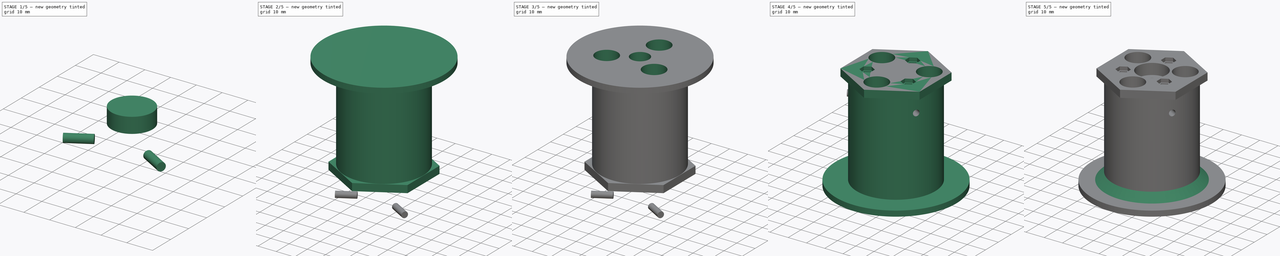
[diagram: build sequence overview — one tinted view per stage of 5, left to right]
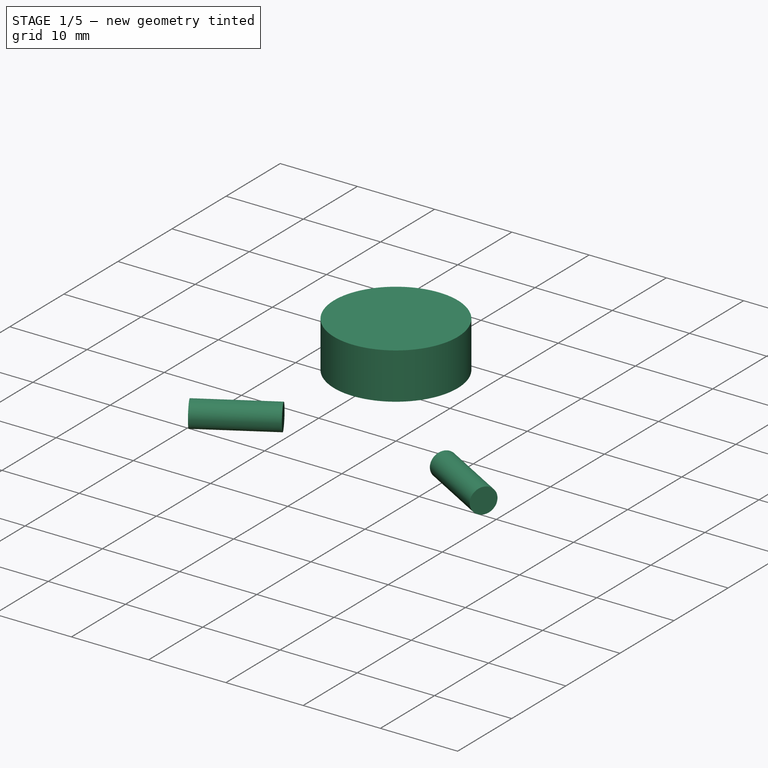
[diagram: stage 1 of 5 — iso view after this stage's code; geometry added in this stage tinted green]
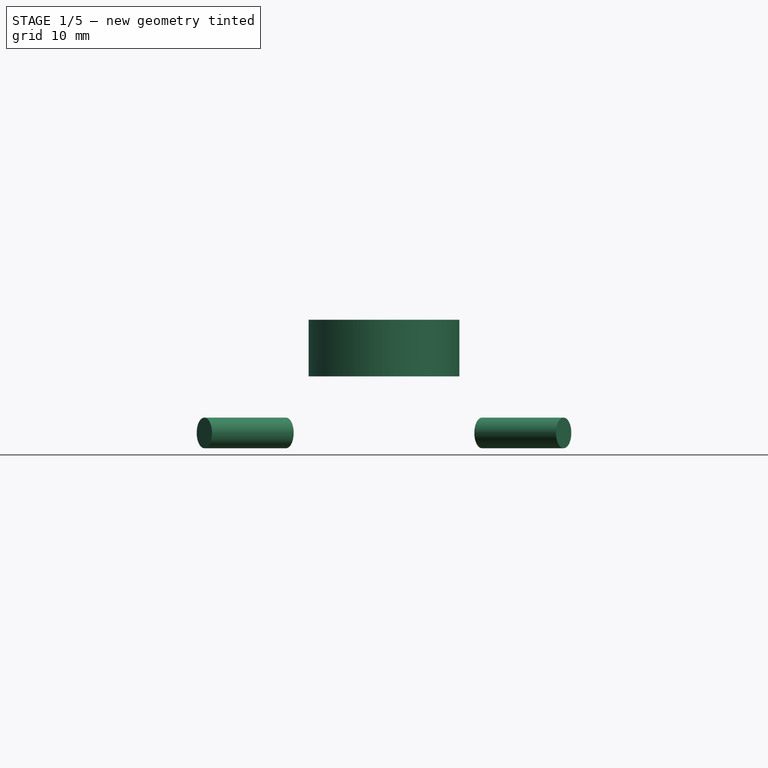
[diagram: stage 1 of 5 — front view after this stage's code; geometry added in this stage tinted green]
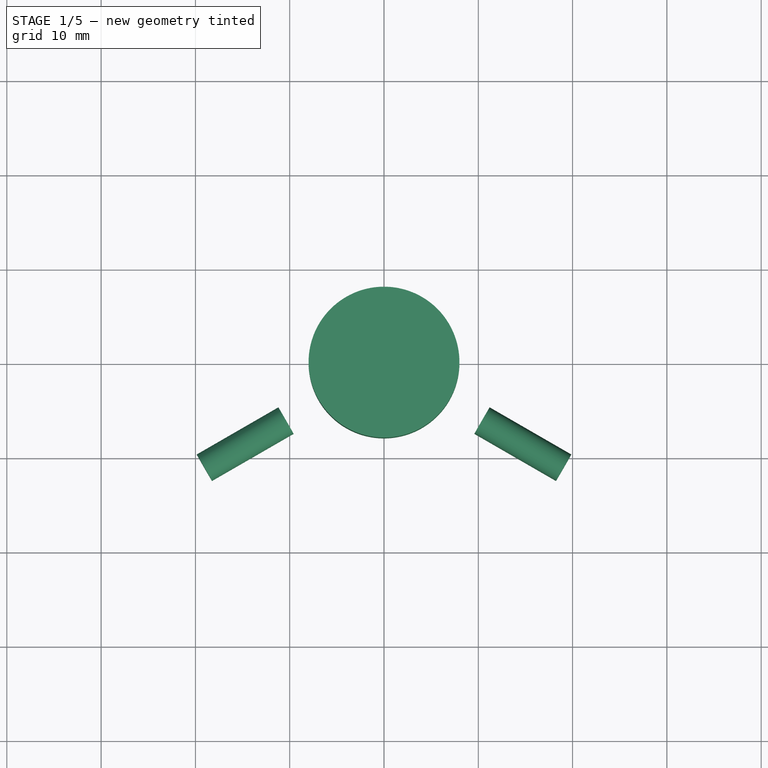
[diagram: stage 1 of 5 — top view after this stage's code; geometry added in this stage tinted green]
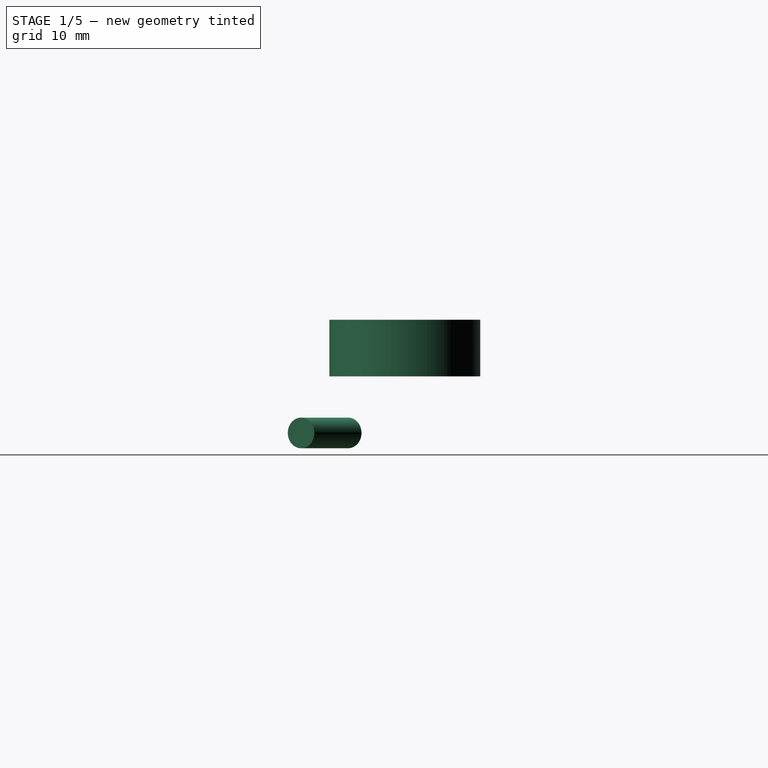
[diagram: stage 1 of 5 — right view after this stage's code; geometry added in this stage tinted green]
FCSTD DOCUMENT  (FreeCAD 0.21R33771 (Git))
Label: reactor-manifold-core-v0.1
License: All rights reserved
LicenseURL: https://en.wikipedia.org/wiki/All_rights_reserved
objects: Sketcher::SketchObject×8, PartDesign::Pocket×5, Part::Cylinder×4, Part::Cut×4, PartDesign::Pad×3, PartDesign::Body×1, Part::Chamfer×1
note: 34 computed .brp shape members not serialized (recipe doc carries the construction recipe); baked Part::Feature solids carry a one-line shape summary decoded from their .brp

FEATURE [Part::Cylinder] Cylinder001
  Angle = 360
  AttacherType = Attacher::AttachEngine3D
  FirstAngle = 0
  Height = 10
  Placement = pos=(10.3923,-6,-12) rot=(0.250563,0.935113,-0.250563;1.63783rad)
  Radius = 1.625
  SecondAngle = 0
FEATURE [Part::Cylinder] Cylinder002
  Angle = 360
  AttacherType = Attacher::AttachEngine3D
  FirstAngle = 0
  Height = 10
  Placement = pos=(-10.3923,-6,-12) rot=(-0.377964,-0.654654,0.654654;2.41886rad)
  Radius = 1.625
  SecondAngle = 0
FEATURE [Part::Cylinder] Cylinder003  label="Bearing cut"
  Angle = 360
  AttacherType = Attacher::AttachEngine3D
  FirstAngle = 0
  Height = 6
  Placement = pos=(0,0,-6) rot=(0,0,1;0rad)
  Radius = 8
  SecondAngle = 0
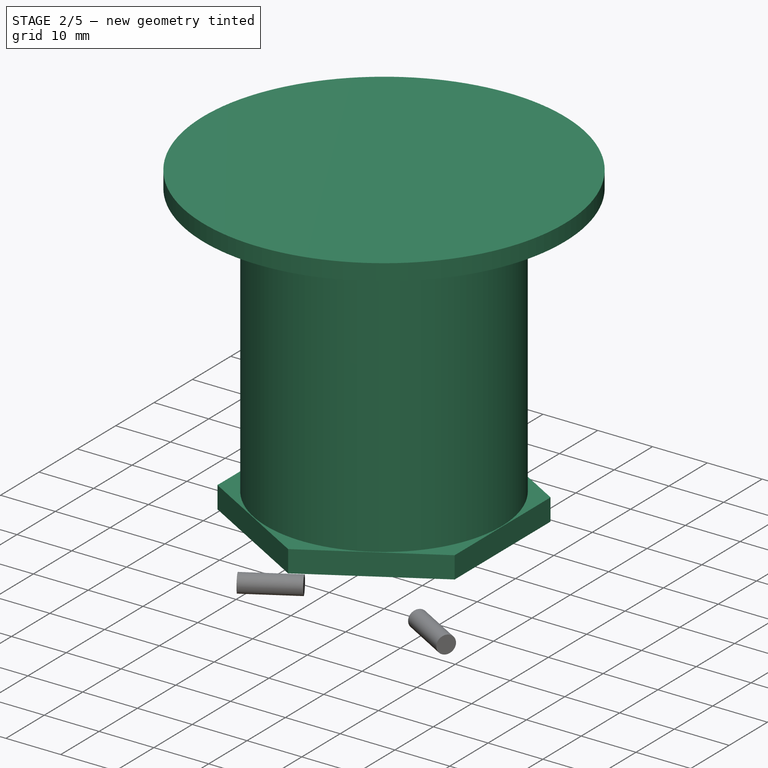
[diagram: stage 2 of 5 — iso view after this stage's code; geometry added in this stage tinted green]
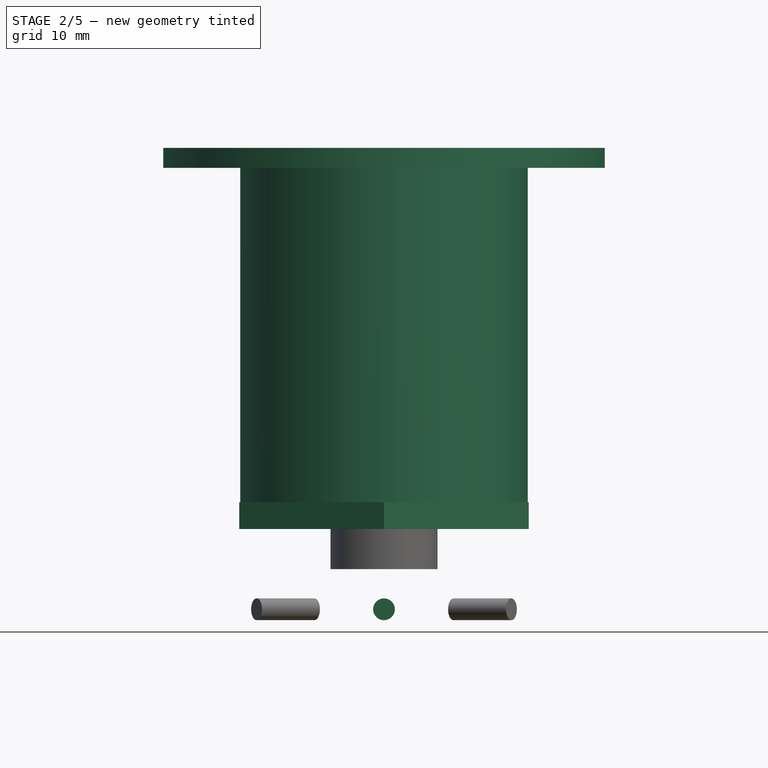
[diagram: stage 2 of 5 — front view after this stage's code; geometry added in this stage tinted green]
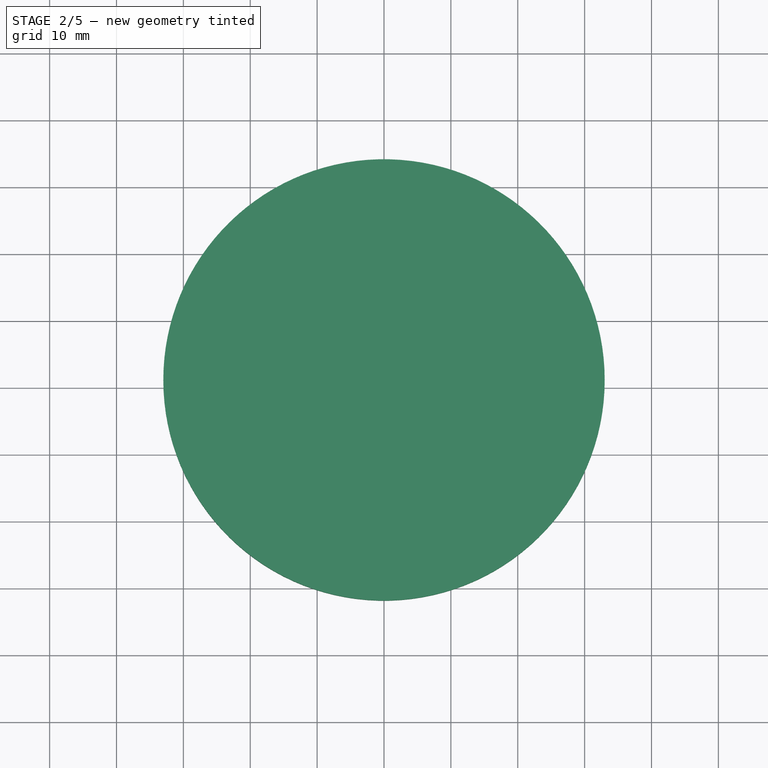
[diagram: stage 2 of 5 — top view after this stage's code; geometry added in this stage tinted green]
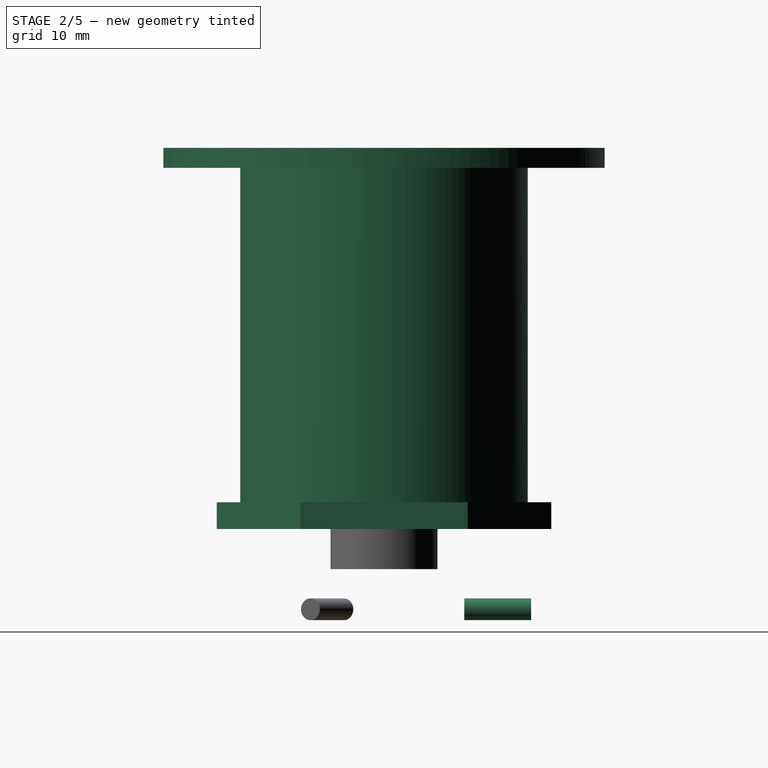
[diagram: stage 2 of 5 — right view after this stage's code; geometry added in this stage tinted green]
FEATURE [Sketcher::SketchObject] Sketch
  FullyConstrained = true
  MapMode = 5
  Support = -> [XY_Plane]
  sketch-geometry (7):
    g0: LineSegment StartX=0 StartY=25 StartZ=0 EndX=-21.6506 EndY=12.5 EndZ=0
    g1: LineSegment StartX=-21.6506 StartY=12.5 StartZ=0 EndX=-21.6506 EndY=-12.5 EndZ=0
    g2: LineSegment StartX=-21.6506 StartY=-12.5 StartZ=0 EndX=3.6e-15 EndY=-25 EndZ=0
    g3: LineSegment StartX=3.6e-15 StartY=-25 StartZ=0 EndX=21.6506 EndY=-12.5 EndZ=0
    g4: LineSegment StartX=21.6506 StartY=-12.5 StartZ=0 EndX=21.6506 EndY=12.5 EndZ=0
    g5: LineSegment StartX=21.6506 StartY=12.5 StartZ=0 EndX=0 EndY=25 EndZ=0
    g6: Circle CenterX=0 CenterY=0 CenterZ=0 NormalX=0 NormalY=0 NormalZ=1 AngleXU=0 Radius=25
  constraints (16):
    c: Coincident(g0,g1)
    c: Coincident(g1,g2)
    c: Coincident(g2,g3)
    c: Coincident(g3,g4)
    c: Coincident(g4,g5)
    c: Coincident(g5,g0)
    c: Equal(g0, g1-g5) x5
    c: PointOnObject(g0,g6)
    c: PointOnObject(g1,g6)
    c: PointOnObject(g2,g6)
    c: PointOnObject(g3,g6)
    c: PointOnObject(g4,g6)
    c: PointOnObject(g5,g6)
    c: Coincident(g6,g-1)
    c: PointOnObject(g5,g-2)
    c: Distance(g0,g2) = 50
FEATURE [PartDesign::Pad] Pad  label="Hexagonal Top"
  Direction = (0,0,1)
  Length = 4
  Length2 = 10
  Profile = -> Sketch
  ReferenceAxis = -> Sketch [N_Axis]
  Type = 0
FEATURE [Sketcher::SketchObject] Sketch001
  FullyConstrained = true
  MapMode = 5
  Placement = pos=(0,0,4) rot=(0,0,1;0rad)
  Support = -> [Pad]
  sketch-geometry (1):
    g0: Circle CenterX=0 CenterY=0 CenterZ=0 NormalX=0 NormalY=0 NormalZ=1 AngleXU=0 Radius=21.5
  constraints (2):
    c: Coincident(g0,g-1)
    c: Diameter(g0) = 43
FEATURE [PartDesign::Pad] Pad001  label="Main Cylinder"
  BaseFeature = -> Pad
  Direction = (0,0,1)
  Length = 50
  Length2 = 10
  Profile = -> Sketch001
  ReferenceAxis = -> Sketch001 [N_Axis]
  Type = 0
FEATURE [Sketcher::SketchObject] Sketch002
  FullyConstrained = true
  MapMode = 5
  Placement = pos=(0,0,54) rot=(0,0,1;0rad)
  Support = -> [Pad001]
  sketch-geometry (1):
    g0: Circle CenterX=0 CenterY=0 CenterZ=0 NormalX=0 NormalY=0 NormalZ=1 AngleXU=0 Radius=33
  constraints (2):
    c: Coincident(g0,g-1)
    c: Diameter(g0) = 66
FEATURE [PartDesign::Pad] Pad002  label="Jar Lid"
  BaseFeature = -> Pad001
  Direction = (0,0,1)
  Length = 3
  Length2 = 10
  Profile = -> Sketch002
  ReferenceAxis = -> Sketch002 [N_Axis]
  Type = 0
FEATURE [PartDesign::Body] Body
  Group = -> [Sketch,Pad,Sketch001,Pad001,Sketch002,Pad002,Sketch003,Pocket,Sketch004,Pocket001,Sketch005,Pocket002,Sketch006,Pocket003,Sketch007,Pocket004]
  Origin = -> Origin
  Placement = pos=(0,0,0) rot=(1,0,0;3.14159rad)
  Tip = -> Pocket004
FEATURE [Part::Cylinder] Cylinder
  Angle = 360
  AttacherType = Attacher::AttachEngine3D
  FirstAngle = 0
  Height = 10
  Placement = pos=(0,22,-12) rot=(1,0,0;1.5708rad)
  Radius = 1.625
  SecondAngle = 0
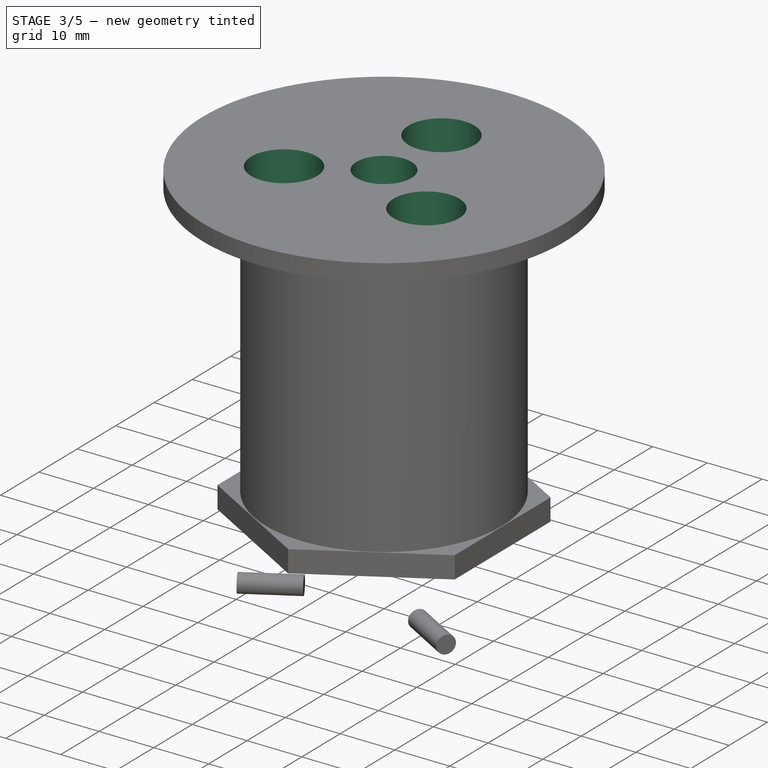
[diagram: stage 3 of 5 — iso view after this stage's code; geometry added in this stage tinted green]
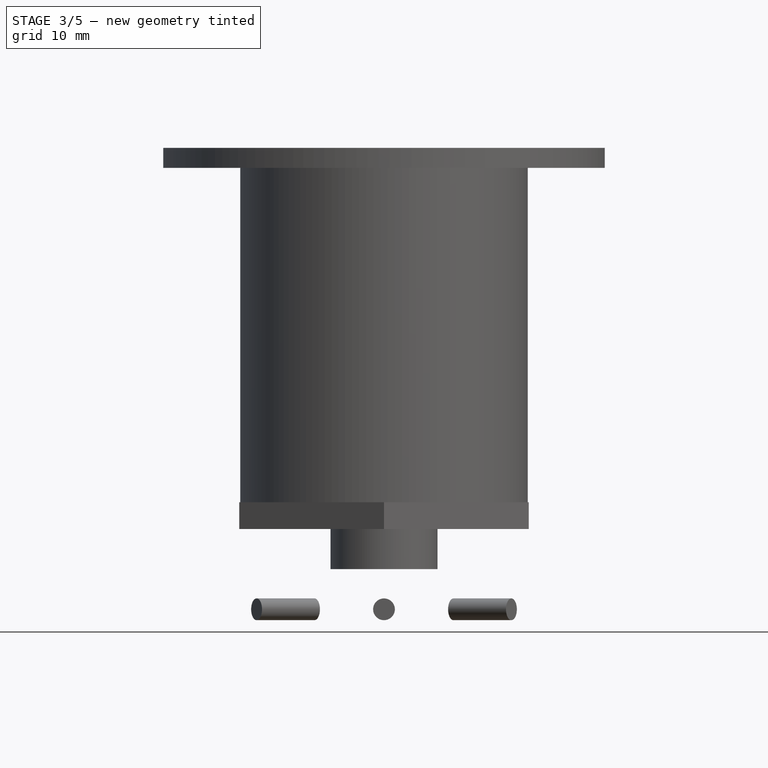
[diagram: stage 3 of 5 — front view after this stage's code; geometry added in this stage tinted green]
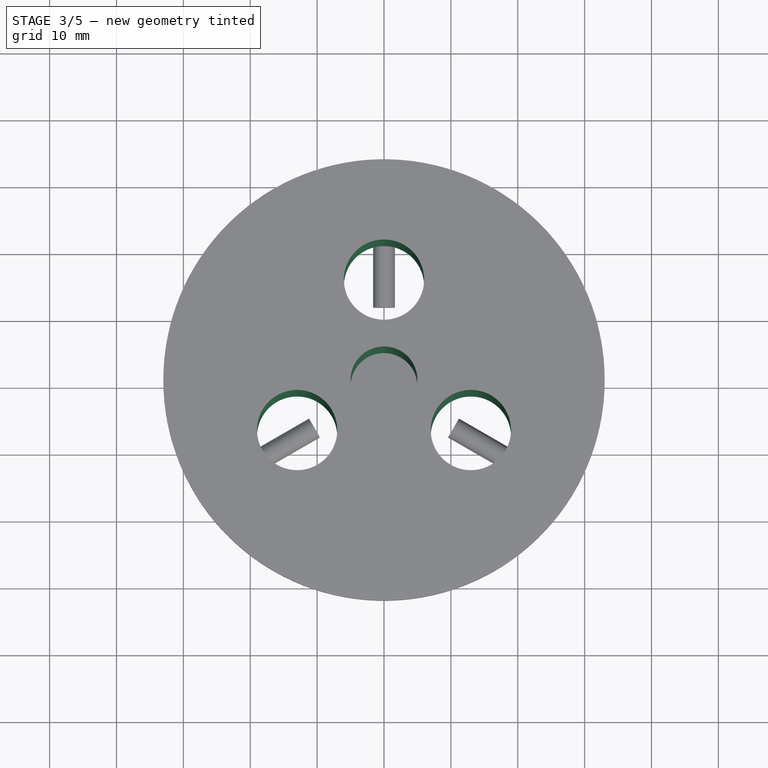
[diagram: stage 3 of 5 — top view after this stage's code; geometry added in this stage tinted green]
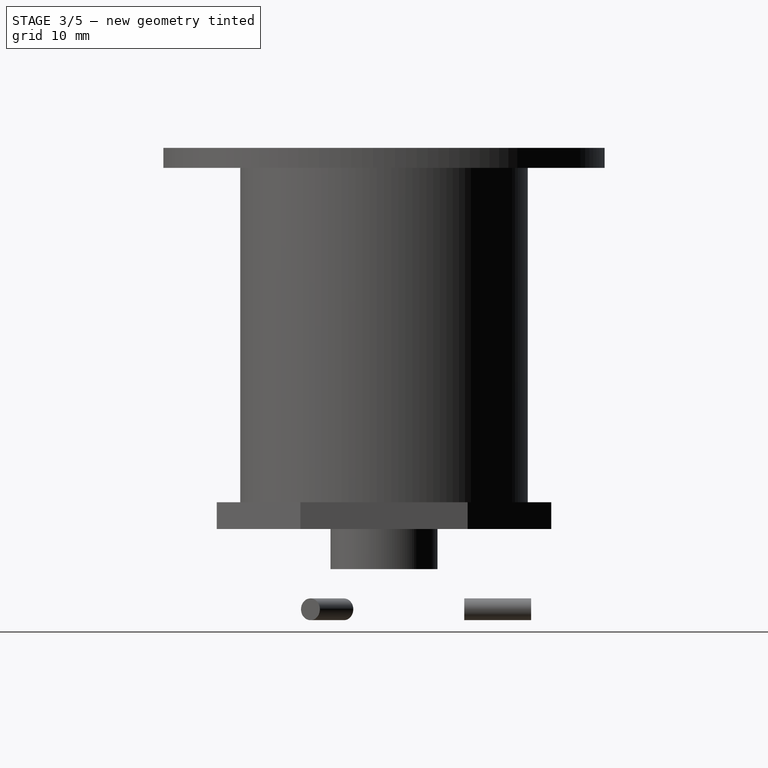
[diagram: stage 3 of 5 — right view after this stage's code; geometry added in this stage tinted green]
FEATURE [Sketcher::SketchObject] Sketch003
  FullyConstrained = true
  MapMode = 5
  Placement = pos=(0,0,57) rot=(0,0,1;0rad)
  Support = -> [Pad002]
  sketch-geometry (1):
    g0: Circle CenterX=0 CenterY=0 CenterZ=0 NormalX=0 NormalY=0 NormalZ=1 AngleXU=0 Radius=5
  constraints (2):
    c: Coincident(g0,g-1)
    c: Diameter(g0) = 10
FEATURE [PartDesign::Pocket] Pocket  label="Stirrer Hole"
  BaseFeature = -> Pad002
  Direction = (0,0,-1)
  Length = 5
  Length2 = 5
  Profile = -> Sketch003
  ReferenceAxis = -> Sketch003 [N_Axis]
  Type = 1
FEATURE [Sketcher::SketchObject] Sketch004
  FullyConstrained = true
  MapMode = 5
  Placement = pos=(0,0,57) rot=(0,0,1;0rad)
  Support = -> [Pocket]
  sketch-geometry (3):
    g0: Circle CenterX=12.9904 CenterY=-7.5 CenterZ=0 NormalX=0 NormalY=0 NormalZ=1 AngleXU=0 Radius=6
    g1: Circle CenterX=-12.9904 CenterY=-7.5 CenterZ=0 NormalX=0 NormalY=0 NormalZ=1 AngleXU=0 Radius=6
    g2: Circle CenterX=0 CenterY=15 CenterZ=0 NormalX=0 NormalY=0 NormalZ=1 AngleXU=0 Radius=6
  constraints (8):
    c: Diameter(g0) = 12
    c: Diameter(g1) = 12  '10'
    c: PointOnObject(g2,g-2)
    c: Diameter(g2) = 12
    c: DistanceY(g-1,g2) = 15
    c: DistanceY(g-1,g0) = -7.5
    c: Distance(g1,g-1) = 15
    c: Symmetric(g1,g0,g-2)
FEATURE [PartDesign::Pocket] Pocket001  label="Reactor Input Holes"
  BaseFeature = -> Pocket
  Direction = (0,0,-1)
  Length = 5
  Length2 = 5
  Profile = -> Sketch004
  ReferenceAxis = -> Sketch004 [N_Axis]
  Type = 1
FEATURE [Sketcher::SketchObject] Sketch005
  FullyConstrained = true
  MapMode = 5
  Placement = pos=(0,0,0) rot=(1,0,0;3.14159rad)
  Support = -> [Pocket001]
  sketch-geometry (3):
    g0: Circle CenterX=0 CenterY=13 CenterZ=0 NormalX=0 NormalY=0 NormalZ=1 AngleXU=0 Radius=1.625
    g1: Circle CenterX=11.265 CenterY=-6.48847 CenterZ=0 NormalX=0 NormalY=0 NormalZ=1 AngleXU=0 Radius=1.625
    g2: Circle CenterX=-11.265 CenterY=-6.48847 CenterZ=0 NormalX=0 NormalY=0 NormalZ=1 AngleXU=0 Radius=1.625
  constraints (9):
    c: PointOnObject(g0,g-2)
    c: Diameter(g0) = 3.25
    c: DistanceY(g0,g-1) = -13
    c: Diameter(g1) = 3.25
    c: Diameter(g2) = 3.25
    c: Distance(g1,g-1) = 13
    c: Distance(g2,g-1) = 13
    c: Distance(g2,g0) = 22.51
    c: DistanceY(g2,g1) = 0
FEATURE [PartDesign::Pocket] Pocket002  label="Top Screw Holes"
  BaseFeature = -> Pocket001
  Direction = (0,0,1)
  Length = 30
  Length2 = 5
  Profile = -> Sketch005
  ReferenceAxis = -> Sketch005 [N_Axis]
  Type = 0
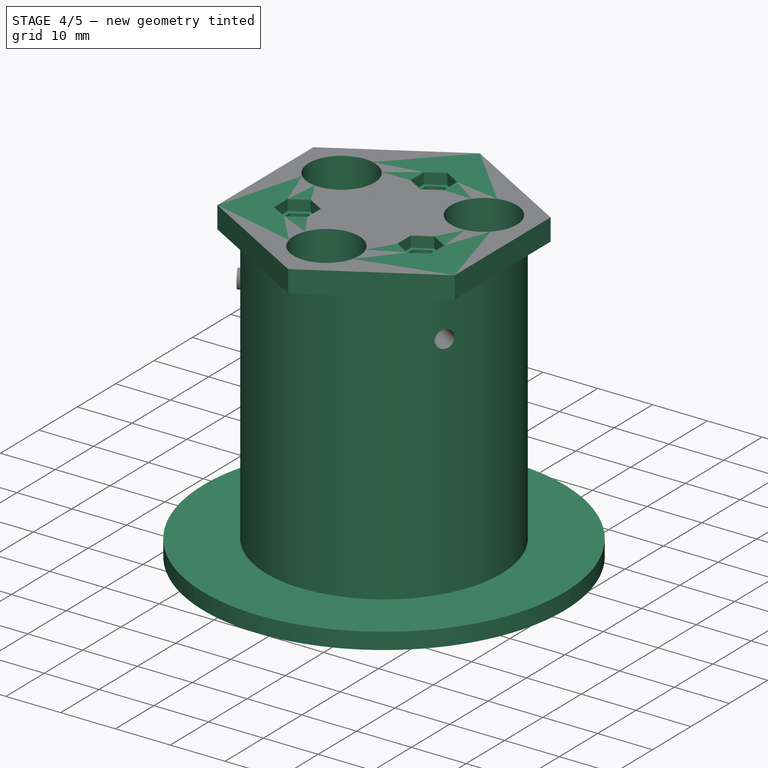
[diagram: stage 4 of 5 — iso view after this stage's code; geometry added in this stage tinted green]
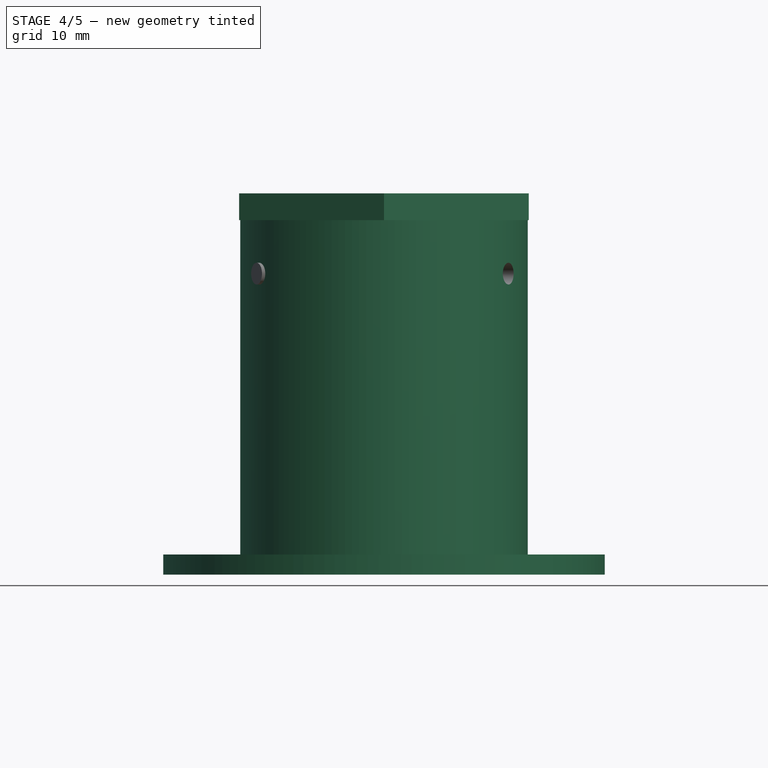
[diagram: stage 4 of 5 — front view after this stage's code; geometry added in this stage tinted green]
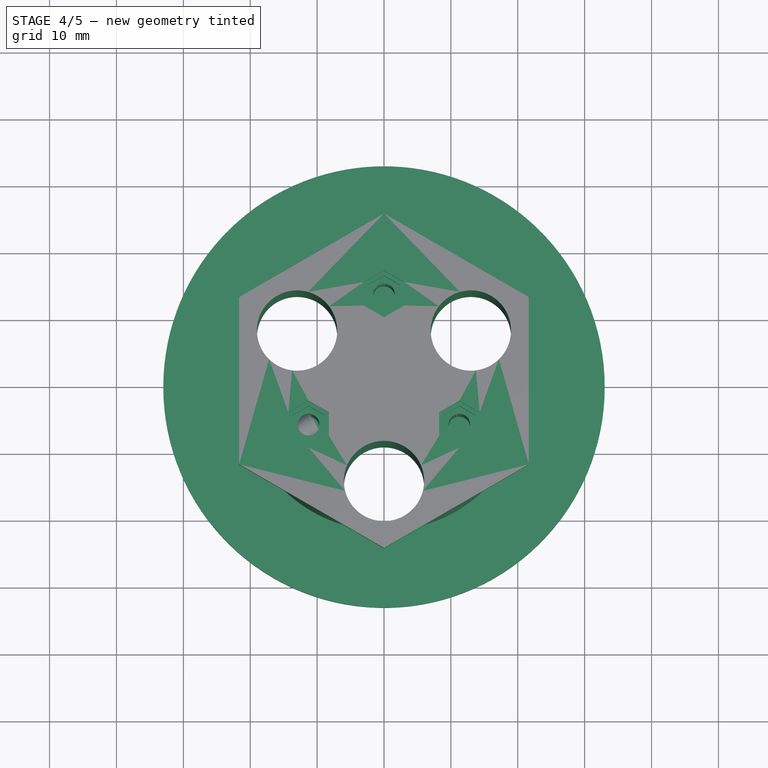
[diagram: stage 4 of 5 — top view after this stage's code; geometry added in this stage tinted green]
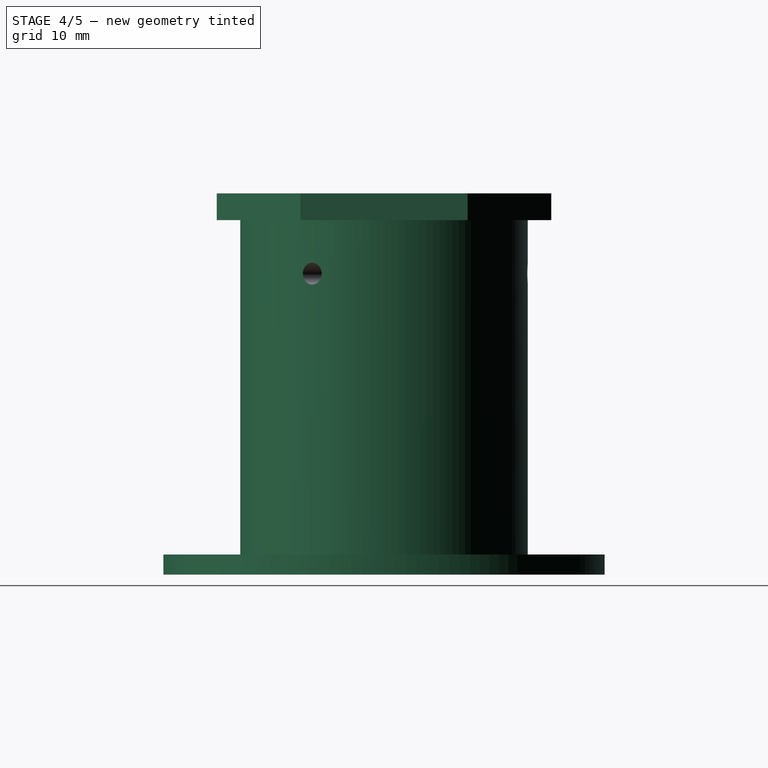
[diagram: stage 4 of 5 — right view after this stage's code; geometry added in this stage tinted green]
FEATURE [Sketcher::SketchObject] Sketch006
  FullyConstrained = true
  MapMode = 5
  Placement = pos=(0,0,0) rot=(1,0,0;3.14159rad)
  Support = -> [Pocket002]
  sketch-geometry (24):
    g0: GeomPoint X=-11.265 Y=-6.48847 Z=0
    g1: GeomPoint X=11.265 Y=-6.48847 Z=0
    g2: GeomPoint X=0 Y=13 Z=0
    g3: LineSegment StartX=13.6466 StartY=-7.86347 StartZ=0 EndX=13.6466 EndY=-5.11347 EndZ=0
    g4: LineSegment StartX=13.6466 StartY=-5.11347 StartZ=0 EndX=11.265 EndY=-3.73847 EndZ=0
    g5: LineSegment StartX=11.265 StartY=-3.73847 StartZ=0 EndX=8.88341 EndY=-5.11347 EndZ=0
    g6: LineSegment StartX=8.88341 StartY=-5.11347 StartZ=0 EndX=8.88341 EndY=-7.86347 EndZ=0
    g7: LineSegment StartX=8.88341 StartY=-7.86347 StartZ=0 EndX=11.265 EndY=-9.23847 EndZ=0
    g8: LineSegment StartX=11.265 StartY=-9.23847 StartZ=0 EndX=13.6466 EndY=-7.86347 EndZ=0
    g9: Circle CenterX=11.265 CenterY=-6.48847 CenterZ=0 NormalX=0 NormalY=0 NormalZ=1 AngleXU=0 Radius=2.75
    g10: LineSegment StartX=-8.88341 StartY=-5.11347 StartZ=0 EndX=-11.265 EndY=-3.73847 EndZ=0
    g11: LineSegment StartX=-11.265 StartY=-3.73847 StartZ=0 EndX=-13.6466 EndY=-5.11347 EndZ=0
    g12: LineSegment StartX=-13.6466 StartY=-5.11347 StartZ=0 EndX=-13.6466 EndY=-7.86347 EndZ=0
    g13: LineSegment StartX=-13.6466 StartY=-7.86347 StartZ=0 EndX=-11.265 EndY=-9.23847 EndZ=0
    g14: LineSegment StartX=-11.265 StartY=-9.23847 StartZ=0 EndX=-8.88341 EndY=-7.86347 EndZ=0
    g15: LineSegment StartX=-8.88341 StartY=-7.86347 StartZ=0 EndX=-8.88341 EndY=-5.11347 EndZ=0
    g16: Circle CenterX=-11.265 CenterY=-6.48847 CenterZ=0 NormalX=0 NormalY=0 NormalZ=1 AngleXU=0 Radius=2.75
    g17: LineSegment StartX=2.38157 StartY=14.375 StartZ=0 EndX=0 EndY=15.75 EndZ=0
    g18: LineSegment StartX=0 StartY=15.75 StartZ=0 EndX=-2.38157 EndY=14.375 EndZ=0
    g19: LineSegment StartX=-2.38157 StartY=14.375 StartZ=0 EndX=-2.38157 EndY=11.625 EndZ=0
    g20: LineSegment StartX=-2.38157 StartY=11.625 StartZ=0 EndX=-4e-16 EndY=10.25 EndZ=0
    g21: LineSegment StartX=-4e-16 StartY=10.25 StartZ=0 EndX=2.38157 EndY=11.625 EndZ=0
    g22: LineSegment StartX=2.38157 StartY=11.625 StartZ=0 EndX=2.38157 EndY=14.375 EndZ=0
    g23: Circle CenterX=0 CenterY=13 CenterZ=0 NormalX=0 NormalY=0 NormalZ=1 AngleXU=0 Radius=2.75
  constraints (53):
    c: PointOnObject(g2,g-2)
    c: Symmetric(g0,g1,g-2)
    c: Distance(g-1,g2) = 13
    c: Distance(g-1,g1) = 13
    c: Distance(g2,g0) = 22.51
    c: Coincident(g3,g4)
    c: Coincident(g4,g5)
    c: Coincident(g5,g6)
    c: Coincident(g6,g7)
    c: Coincident(g7,g8)
    c: Coincident(g8,g3)
    c: Equal(g3, g4-g8) x5
    c: PointOnObject(g3,g9)
    c: PointOnObject(g4,g9)
    c: PointOnObject(g5,g9)
    c: PointOnObject(g6,g9)
    c: PointOnObject(g7,g9)
    c: PointOnObject(g8,g9)
    c: Coincident(g9,g1)
    c: Distance(g1,g3) = 2.75
    c: Vertical(g6)
    c: Coincident(g10,g11)
    c: Coincident(g11,g12)
    c: Coincident(g12,g13)
    c: Coincident(g13,g14)
    c: Coincident(g14,g15)
    c: Coincident(g15,g10)
    c: Equal(g10, g11-g15) x5
    c: PointOnObject(g10,g16)
    c: PointOnObject(g11,g16)
    c: PointOnObject(g12,g16)
    c: PointOnObject(g13,g16)
    c: PointOnObject(g14,g16)
    c: PointOnObject(g15,g16)
    c: Coincident(g16,g0)
    c: Distance(g0,g10) = 2.75
    c: Vertical(g15)
    c: Coincident(g17,g18)
    c: Coincident(g18,g19)
    c: Coincident(g19,g20)
    c: Coincident(g20,g21)
    c: Coincident(g21,g22)
    c: Coincident(g22,g17)
    c: Equal(g17, g18-g22) x5
    c: PointOnObject(g17,g23)
    c: PointOnObject(g18,g23)
    c: PointOnObject(g19,g23)
    c: PointOnObject(g20,g23)
    c: PointOnObject(g21,g23)
    c: PointOnObject(g22,g23)
    c: Coincident(g23,g2)
    c: Distance(g2,g17) = 2.75
    c: Vertical(g22)
FEATURE [PartDesign::Pocket] Pocket003  label="Nut Holes"
  BaseFeature = -> Pocket002
  Direction = (0,0,1)
  Length = 5
  Length2 = 5
  Profile = -> Sketch006
  ReferenceAxis = -> Sketch006 [N_Axis]
  Type = 0
FEATURE [Sketcher::SketchObject] Sketch007
  FullyConstrained = true
  MapMode = 5
  Placement = pos=(0,0,0) rot=(1,0,0;3.14159rad)
  Support = -> [Pocket003]
  sketch-geometry (21):
    g0: LineSegment StartX=3.03109 StartY=11.25 StartZ=0 EndX=3.03109 EndY=14.75 EndZ=0
    g1: LineSegment StartX=3.03109 StartY=14.75 StartZ=0 EndX=0 EndY=16.5 EndZ=0
    g2: LineSegment StartX=0 StartY=16.5 StartZ=0 EndX=-3.03109 EndY=14.75 EndZ=0
    g3: LineSegment StartX=-3.03109 StartY=14.75 StartZ=0 EndX=-3.03109 EndY=11.25 EndZ=0
    g4: LineSegment StartX=-3.03109 StartY=11.25 StartZ=0 EndX=0 EndY=9.5 EndZ=0
    g5: LineSegment StartX=0 StartY=9.5 StartZ=0 EndX=3.03109 EndY=11.25 EndZ=0
    g6: Circle CenterX=0 CenterY=13 CenterZ=0 NormalX=0 NormalY=0 NormalZ=1 AngleXU=0 Radius=3.5
    g7: LineSegment StartX=14.2961 StartY=-8.23847 StartZ=0 EndX=14.2961 EndY=-4.73847 EndZ=0
    g8: LineSegment StartX=14.2961 StartY=-4.73847 StartZ=0 EndX=11.265 EndY=-2.98847 EndZ=0
    g9: LineSegment StartX=11.265 StartY=-2.98847 StartZ=0 EndX=8.23389 EndY=-4.73847 EndZ=0
    g10: LineSegment StartX=8.23389 StartY=-4.73847 StartZ=0 EndX=8.23389 EndY=-8.23847 EndZ=0
    g11: LineSegment StartX=8.23389 StartY=-8.23847 StartZ=0 EndX=11.265 EndY=-9.98847 EndZ=0
    g12: LineSegment StartX=11.265 StartY=-9.98847 StartZ=0 EndX=14.2961 EndY=-8.23847 EndZ=0
    g13: Circle CenterX=11.265 CenterY=-6.48847 CenterZ=0 NormalX=0 NormalY=0 NormalZ=1 AngleXU=0 Radius=3.5
    g14: LineSegment StartX=-8.23389 StartY=-8.23847 StartZ=0 EndX=-8.23389 EndY=-4.73847 EndZ=0
    g15: LineSegment StartX=-8.23389 StartY=-4.73847 StartZ=0 EndX=-11.265 EndY=-2.98847 EndZ=0
    g16: LineSegment StartX=-11.265 StartY=-2.98847 StartZ=0 EndX=-14.2961 EndY=-4.73847 EndZ=0
    g17: LineSegment StartX=-14.2961 StartY=-4.73847 StartZ=0 EndX=-14.2961 EndY=-8.23847 EndZ=0
    g18: LineSegment StartX=-14.2961 StartY=-8.23847 StartZ=0 EndX=-11.265 EndY=-9.98847 EndZ=0
    g19: LineSegment StartX=-11.265 StartY=-9.98847 StartZ=0 EndX=-8.23389 EndY=-8.23847 EndZ=0
    g20: Circle CenterX=-11.265 CenterY=-6.48847 CenterZ=0 NormalX=0 NormalY=0 NormalZ=1 AngleXU=0 Radius=3.5
  constraints (50):
    c: Coincident(g0,g1)
    c: Coincident(g1,g2)
    c: Coincident(g2,g3)
    c: Coincident(g3,g4)
    c: Coincident(g4,g5)
    c: Coincident(g5,g0)
    c: Equal(g0, g1-g5) x5
    c: PointOnObject(g0,g6)
    c: PointOnObject(g1,g6)
    c: PointOnObject(g2,g6)
    c: PointOnObject(g3,g6)
    c: PointOnObject(g4,g6)
    c: PointOnObject(g5,g6)
    c: PointOnObject(g6,g-2)
    c: Distance(g1,g4) = 7
    c: DistanceY(g-1,g6) = 13
    c: DistanceX(g-2,g4) = 0
    c: Coincident(g7,g8)
    c: Coincident(g8,g9)
    c: Coincident(g9,g10)
    c: Coincident(g10,g11)
    c: Coincident(g11,g12)
    c: Coincident(g12,g7)
    c: Equal(g7, g8-g12) x5
    c: PointOnObject(g7,g13)
    c: PointOnObject(g8,g13)
    c: PointOnObject(g9,g13)
    c: PointOnObject(g10,g13)
    c: PointOnObject(g11,g13)
    c: PointOnObject(g12,g13)
    c: DistanceY(g11,g8) = 7
    c: Distance(g-1,g13) = 13
    c: Coincident(g14,g15)
    c: Coincident(g15,g16)
    c: Coincident(g16,g17)
    c: Coincident(g17,g18)
    c: Coincident(g18,g19)
    c: Coincident(g19,g14)
    c: Equal(g14, g15-g19) x5
    c: PointOnObject(g14,g20)
    c: PointOnObject(g15,g20)
    c: PointOnObject(g16,g20)
    c: PointOnObject(g17,g20)
    c: PointOnObject(g18,g20)
    c: PointOnObject(g19,g20)
    c: Distance(g6,g20) = 22.51
    c: Symmetric(g20,g13,g-2)
    c: Distance(g14,g20) = 3.5
    c: Vertical(g14)
    c: Vertical(g10)
FEATURE [PartDesign::Pocket] Pocket004  label="Nut Holder Holes"
  BaseFeature = -> Pocket003
  Direction = (0,0,1)
  Length = 2
  Length2 = 5
  Profile = -> Sketch007
  ReferenceAxis = -> Sketch007 [N_Axis]
  Type = 0
FEATURE [Part::Cut] Cut
  Base = -> Body
  Tool = -> Cylinder
FEATURE [Part::Cut] Cut001
  Base = -> Cut
  Tool = -> Cylinder001
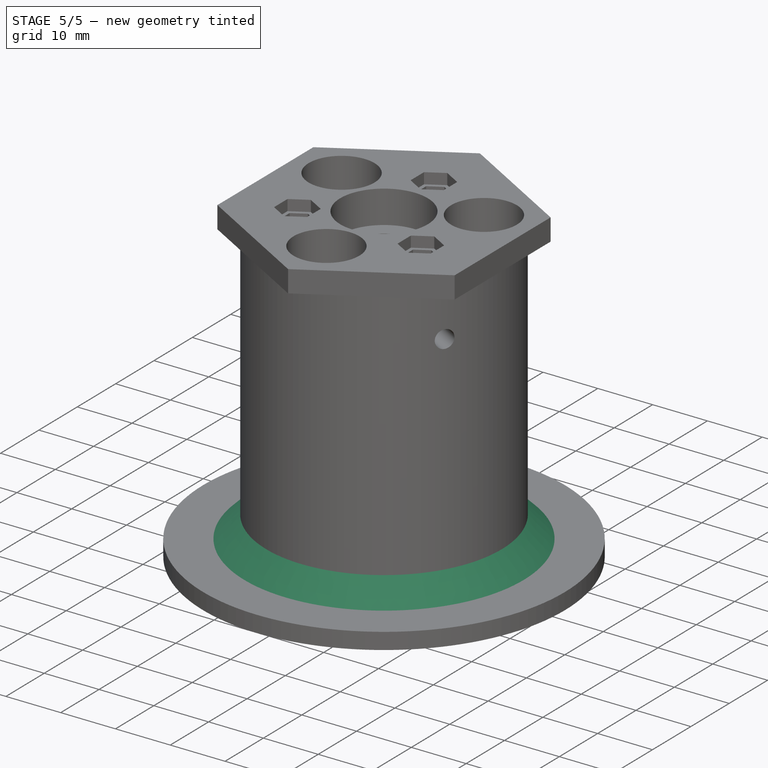
[diagram: stage 5 of 5 — iso view after this stage's code; geometry added in this stage tinted green]
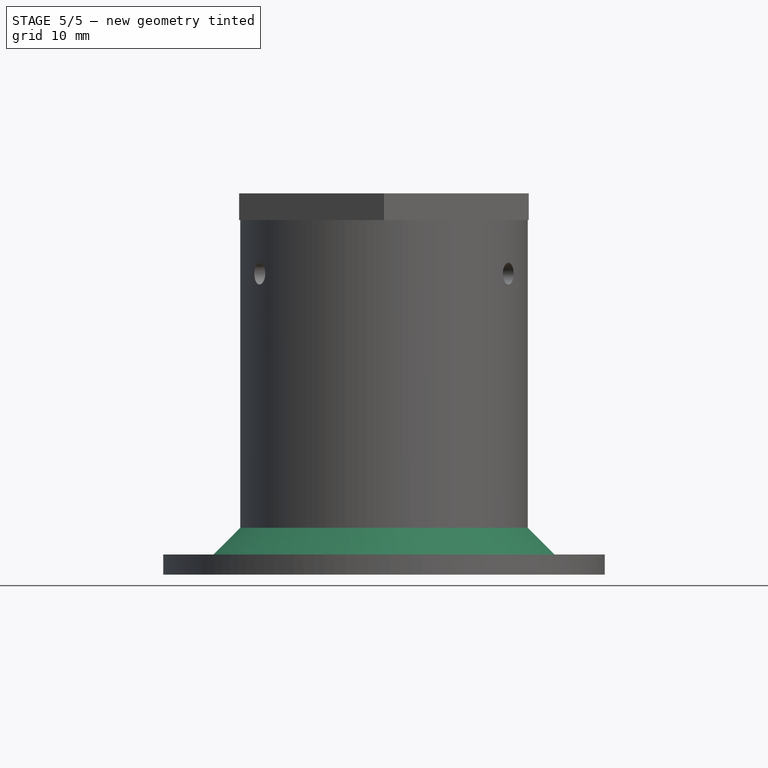
[diagram: stage 5 of 5 — front view after this stage's code; geometry added in this stage tinted green]
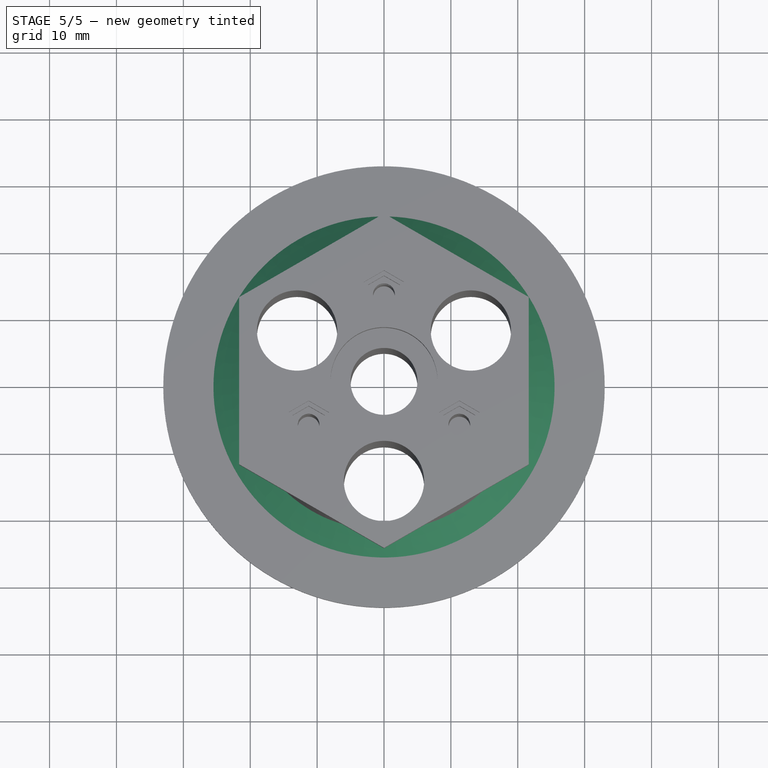
[diagram: stage 5 of 5 — top view after this stage's code; geometry added in this stage tinted green]
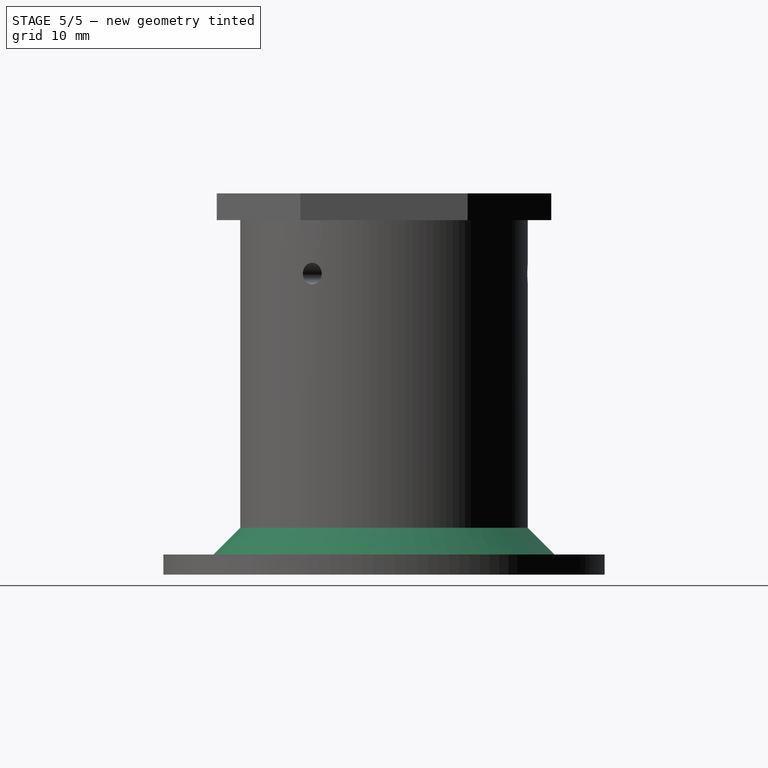
[diagram: stage 5 of 5 — right view after this stage's code; geometry added in this stage tinted green]
FEATURE [Part::Cut] Cut002  label="With support screw cuts"
  Base = -> Cut001
  Tool = -> Cylinder002
FEATURE [Part::Cut] Cut003  label="With Bearing Cuts"
  Base = -> Cut002
  Tool = -> Cylinder003
FEATURE [Part::Chamfer] Chamfer  label="Reinforced"
  Base = -> Cut003
  Edges = 1 edges r=4: [Edge4]
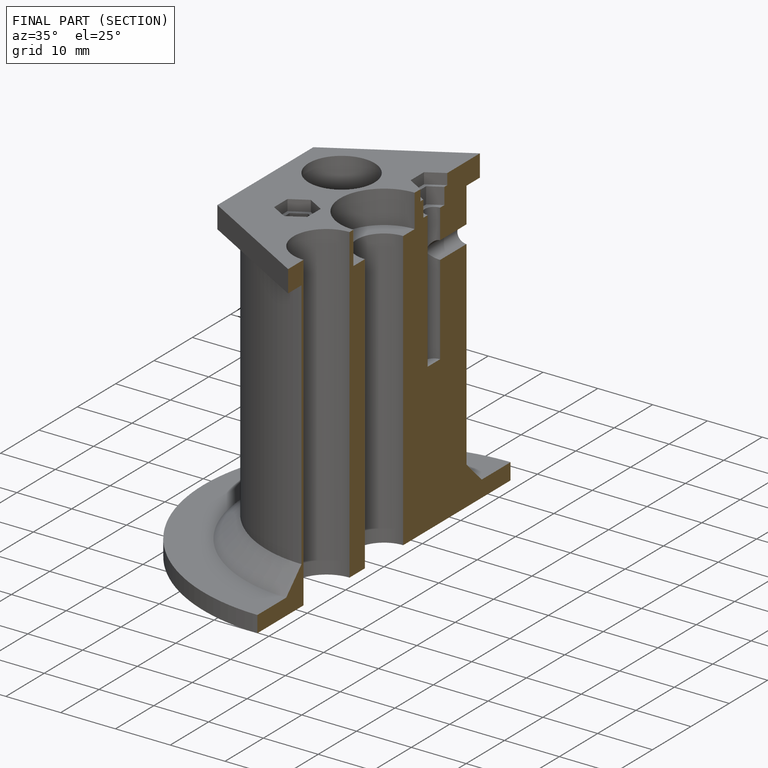
[diagram: finished part — half-section view (interior)]
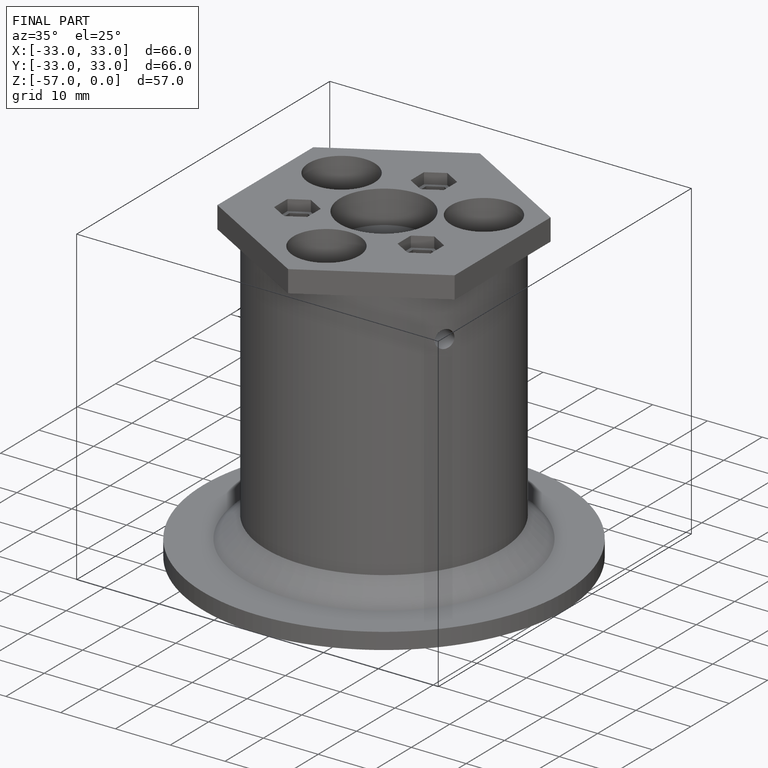
[diagram: finished part — iso view with bounding-box wireframe]
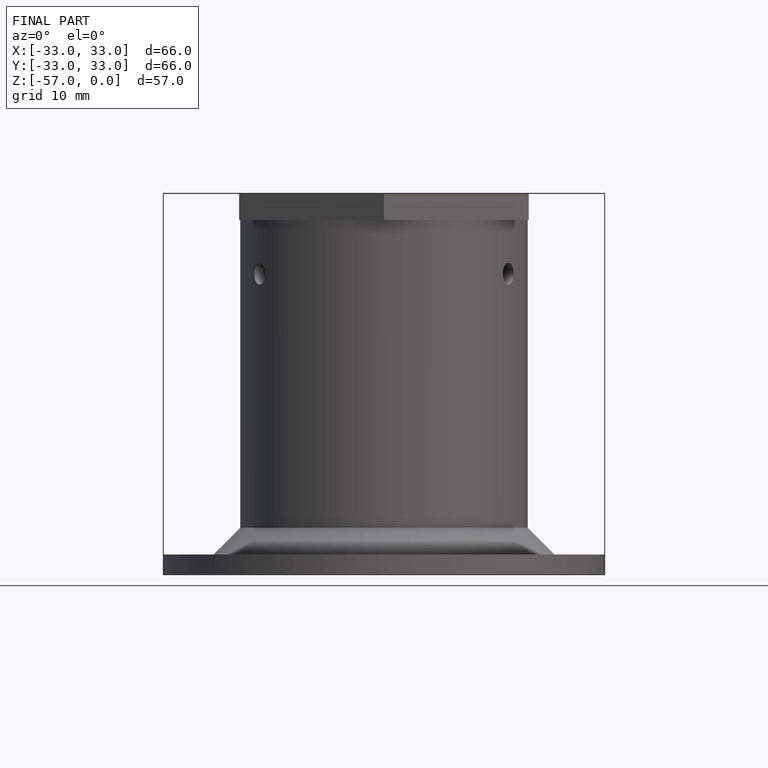
[diagram: finished part — front view with bounding-box wireframe]
